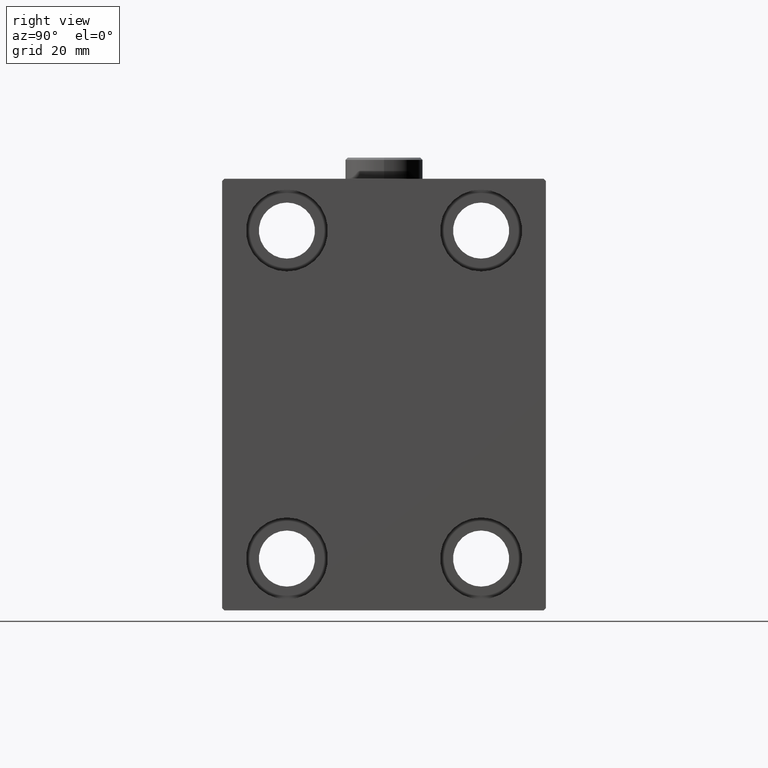
[diagram: clean part render]
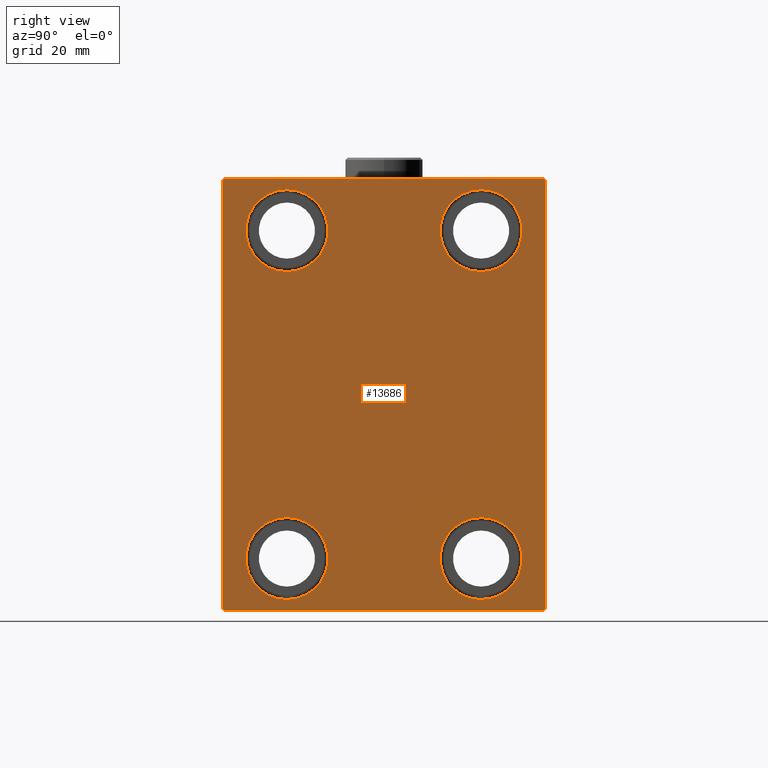
[diagram: same view with one face highlighted and labeled with its STEP entity id]
A machine part, right view. The second image highlights one B-rep face of the part: STEP entity #13686.
In plain terms, the highlighted planar face has unit normal (1, 0, 0).
Its self-contained STEP definition (entity closure, byte-faithful):
#562 = DIRECTION ( 'NONE',  ( -1.000000000000000000, -0.000000000000000000, -0.000000000000000000 ) ) ;
#785 = DIRECTION ( 'NONE',  ( 0.000000000000000000, 0.000000000000000000, 1.000000000000000000 ) ) ;
#888 = EDGE_LOOP ( 'NONE', ( #12313, #14597, #30465, #17201, #4033, #37315, #1785, #41265 ) ) ;
#891 = ORIENTED_EDGE ( 'NONE', *, *, #10269, .T. ) ;
#1553 = LINE ( 'NONE', #32935, #21883 ) ;
#1661 = EDGE_CURVE ( 'NONE', #30885, #25471, #3425, .T. ) ;
#1680 = CARTESIAN_POINT ( 'NONE',  ( 98.00000000000000000, 22.49999999999999645, -37.99999999999999289 ) ) ;
#1705 = DIRECTION ( 'NONE',  ( 0.000000000000000000, 0.000000000000000000, 1.000000000000000000 ) ) ;
#1752 = CARTESIAN_POINT ( 'NONE',  ( 98.00000000000000000, -22.50000000000000711, -28.49999999999998934 ) ) ;
#1785 = ORIENTED_EDGE ( 'NONE', *, *, #32201, .T. ) ;
#1926 = EDGE_CURVE ( 'NONE', #4985, #2727, #10728, .T. ) ;
#2193 = CIRCLE ( 'NONE', #8009, 9.500000000000001776 ) ;
#2316 = EDGE_CURVE ( 'NONE', #5127, #18008, #43561, .T. ) ;
#2421 = EDGE_CURVE ( 'NONE', #43063, #16576, #2986, .T. ) ;
#2727 = VERTEX_POINT ( 'NONE', #24645 ) ;
#2986 = LINE ( 'NONE', #43789, #29823 ) ;
#3299 = FACE_BOUND ( 'NONE', #38117, .T. ) ;
#3425 = CIRCLE ( 'NONE', #21745, 9.500000000000001776 ) ;
#3479 = VERTEX_POINT ( 'NONE', #11196 ) ;
#3983 = CARTESIAN_POINT ( 'NONE',  ( 98.00000000000000000, 22.49999999999999645, -37.99999999999999289 ) ) ;
#4033 = ORIENTED_EDGE ( 'NONE', *, *, #2421, .T. ) ;
#4823 = DIRECTION ( 'NONE',  ( -0.000000000000000000, -0.7071067811865425767, 0.7071067811865525687 ) ) ;
#4985 = VERTEX_POINT ( 'NONE', #28617 ) ;
#5072 = EDGE_CURVE ( 'NONE', #43277, #43063, #42818, .T. ) ;
#5091 = EDGE_CURVE ( 'NONE', #12102, #43277, #8632, .T. ) ;
#5127 = VERTEX_POINT ( 'NONE', #22412 ) ;
#5404 = DIRECTION ( 'NONE',  ( 0.000000000000000000, -1.000000000000000000, -1.850371707708594316E-16 ) ) ;
#5614 = EDGE_CURVE ( 'NONE', #3479, #42567, #43477, .T. ) ;
#5652 = DIRECTION ( 'NONE',  ( 0.000000000000000000, -1.387778780781445676E-16, 1.000000000000000000 ) ) ;
#5947 = VERTEX_POINT ( 'NONE', #18815 ) ;
#6037 = DIRECTION ( 'NONE',  ( -1.000000000000000000, -0.000000000000000000, -0.000000000000000000 ) ) ;
#6092 = LINE ( 'NONE', #37063, #42496 ) ;
#8009 = AXIS2_PLACEMENT_3D ( 'NONE', #23486, #6037, #1705 ) ;
#8129 = VECTOR ( 'NONE', #36424, 1000.000000000000114 ) ;
#8256 = DIRECTION ( 'NONE',  ( -1.000000000000000000, -0.000000000000000000, -0.000000000000000000 ) ) ;
#8444 = AXIS2_PLACEMENT_3D ( 'NONE', #1680, #29639, #12212 ) ;
#8632 = LINE ( 'NONE', #33155, #11961 ) ;
#8699 = AXIS2_PLACEMENT_3D ( 'NONE', #18028, #17798, #14124 ) ;
#8807 = CIRCLE ( 'NONE', #8699, 9.500000000000001776 ) ;
#10269 = EDGE_CURVE ( 'NONE', #2727, #4985, #36279, .T. ) ;
#10728 = CIRCLE ( 'NONE', #24670, 9.500000000000001776 ) ;
#11196 = CARTESIAN_POINT ( 'NONE',  ( 98.00000000000000000, -22.50000000000000711, -47.49999999999999289 ) ) ;
#11289 = EDGE_CURVE ( 'NONE', #41712, #5947, #42180, .T. ) ;
#11942 = CARTESIAN_POINT ( 'NONE',  ( 98.00000000000000000, -37.50000000000000711, 49.49999999999997868 ) ) ;
#11961 = VECTOR ( 'NONE', #15082, 1000.000000000000000 ) ;
#11969 = EDGE_LOOP ( 'NONE', ( #891, #38031 ) ) ;
#12102 = VERTEX_POINT ( 'NONE', #11942 ) ;
#12134 = EDGE_LOOP ( 'NONE', ( #29856, #13609 ) ) ;
#12152 = AXIS2_PLACEMENT_3D ( 'NONE', #35578, #8256, #25494 ) ;
#12212 = DIRECTION ( 'NONE',  ( 0.000000000000000000, 0.000000000000000000, 1.000000000000000000 ) ) ;
#12313 = ORIENTED_EDGE ( 'NONE', *, *, #42219, .T. ) ;
#13400 = DIRECTION ( 'NONE',  ( -1.000000000000000000, -0.000000000000000000, -0.000000000000000000 ) ) ;
#13576 = EDGE_LOOP ( 'NONE', ( #18907, #28610 ) ) ;
#13598 = CARTESIAN_POINT ( 'NONE',  ( 98.00000000000000000, 36.99999999999999289, 50.00000000000000711 ) ) ;
#13609 = ORIENTED_EDGE ( 'NONE', *, *, #1661, .T. ) ;
#13686 = ADVANCED_FACE ( 'NONE', ( #24167, #13841, #3299, #34692, #27829 ), #20049, .T. ) ;
#13841 = FACE_BOUND ( 'NONE', #12134, .T. ) ;
#14124 = DIRECTION ( 'NONE',  ( 0.000000000000000000, 0.000000000000000000, 1.000000000000000000 ) ) ;
#14597 = ORIENTED_EDGE ( 'NONE', *, *, #22693, .T. ) ;
#15082 = DIRECTION ( 'NONE',  ( 0.000000000000000000, 0.000000000000000000, -1.000000000000000000 ) ) ;
#15524 = DIRECTION ( 'NONE',  ( 0.000000000000000000, -0.7071067811865474617, -0.7071067811865474617 ) ) ;
#15552 = CARTESIAN_POINT ( 'NONE',  ( 98.00000000000000000, -36.99999999999999289, 49.99999999999999289 ) ) ;
#16439 = ORIENTED_EDGE ( 'NONE', *, *, #37194, .T. ) ;
#16576 = VERTEX_POINT ( 'NONE', #40091 ) ;
#16658 = CARTESIAN_POINT ( 'NONE',  ( 98.00000000000000000, -22.49999999999999645, 37.99999999999999289 ) ) ;
#17201 = ORIENTED_EDGE ( 'NONE', *, *, #5072, .T. ) ;
#17798 = DIRECTION ( 'NONE',  ( -1.000000000000000000, -0.000000000000000000, -0.000000000000000000 ) ) ;
#18008 = VERTEX_POINT ( 'NONE', #13598 ) ;
#18028 = CARTESIAN_POINT ( 'NONE',  ( 98.00000000000000000, -22.50000000000000711, -37.99999999999999289 ) ) ;
#18815 = CARTESIAN_POINT ( 'NONE',  ( 98.00000000000000000, 22.50000000000000355, 47.49999999999999289 ) ) ;
#18907 = ORIENTED_EDGE ( 'NONE', *, *, #5614, .T. ) ;
#20049 = PLANE ( 'NONE',  #27488 ) ;
#20578 = DIRECTION ( 'NONE',  ( 0.000000000000000000, 0.000000000000000000, 1.000000000000000000 ) ) ;
#21058 = CARTESIAN_POINT ( 'NONE',  ( 98.00000000000000000, -22.49999999999999645, 47.49999999999999289 ) ) ;
#21745 = AXIS2_PLACEMENT_3D ( 'NONE', #16658, #24212, #24660 ) ;
#21883 = VECTOR ( 'NONE', #15524, 1000.000000000000114 ) ;
#22412 = CARTESIAN_POINT ( 'NONE',  ( 98.00000000000000000, 37.49999999999999289, 49.50000000000000000 ) ) ;
#22693 = EDGE_CURVE ( 'NONE', #41879, #12102, #1553, .T. ) ;
#22839 = LINE ( 'NONE', #40475, #24531 ) ;
#23319 = CARTESIAN_POINT ( 'NONE',  ( 98.00000000000000000, 37.50000000000000711, -49.50000000000000000 ) ) ;
#23486 = CARTESIAN_POINT ( 'NONE',  ( 98.00000000000000000, -22.49999999999999645, 37.99999999999999289 ) ) ;
#23708 = DIRECTION ( 'NONE',  ( 1.000000000000000000, 0.000000000000000000, 0.000000000000000000 ) ) ;
#24167 = FACE_BOUND ( 'NONE', #11969, .T. ) ;
#24212 = DIRECTION ( 'NONE',  ( -1.000000000000000000, -0.000000000000000000, -0.000000000000000000 ) ) ;
#24531 = VECTOR ( 'NONE', #5404, 1000.000000000000000 ) ;
#24645 = CARTESIAN_POINT ( 'NONE',  ( 98.00000000000000000, 22.49999999999999645, -47.49999999999999289 ) ) ;
#24660 = DIRECTION ( 'NONE',  ( 0.000000000000000000, 0.000000000000000000, 1.000000000000000000 ) ) ;
#24670 = AXIS2_PLACEMENT_3D ( 'NONE', #3983, #562, #785 ) ;
#25131 = EDGE_CURVE ( 'NONE', #25471, #30885, #2193, .T. ) ;
#25471 = VERTEX_POINT ( 'NONE', #30971 ) ;
#25494 = DIRECTION ( 'NONE',  ( 0.000000000000000000, 0.000000000000000000, 1.000000000000000000 ) ) ;
#26075 = DIRECTION ( 'NONE',  ( -0.000000000000000000, 0.7071067811865474617, -0.7071067811865474617 ) ) ;
#26783 = ORIENTED_EDGE ( 'NONE', *, *, #11289, .T. ) ;
#27388 = DIRECTION ( 'NONE',  ( 0.000000000000000000, 0.000000000000000000, 1.000000000000000000 ) ) ;
#27488 = AXIS2_PLACEMENT_3D ( 'NONE', #38152, #23708, #34008 ) ;
#27619 = VERTEX_POINT ( 'NONE', #23319 ) ;
#27829 = FACE_OUTER_BOUND ( 'NONE', #888, .T. ) ;
#28610 = ORIENTED_EDGE ( 'NONE', *, *, #28700, .T. ) ;
#28617 = CARTESIAN_POINT ( 'NONE',  ( 98.00000000000000000, 22.49999999999999645, -28.49999999999998934 ) ) ;
#28700 = EDGE_CURVE ( 'NONE', #42567, #3479, #8807, .T. ) ;
#29639 = DIRECTION ( 'NONE',  ( -1.000000000000000000, -0.000000000000000000, -0.000000000000000000 ) ) ;
#29823 = VECTOR ( 'NONE', #30723, 1000.000000000000000 ) ;
#29856 = ORIENTED_EDGE ( 'NONE', *, *, #25131, .T. ) ;
#30465 = ORIENTED_EDGE ( 'NONE', *, *, #5091, .T. ) ;
#30723 = DIRECTION ( 'NONE',  ( 0.000000000000000000, 1.000000000000000000, 9.251858538542970348E-17 ) ) ;
#30885 = VERTEX_POINT ( 'NONE', #21058 ) ;
#30971 = CARTESIAN_POINT ( 'NONE',  ( 98.00000000000000000, -22.49999999999999645, 28.49999999999998934 ) ) ;
#31056 = AXIS2_PLACEMENT_3D ( 'NONE', #31940, #13400, #27388 ) ;
#31940 = CARTESIAN_POINT ( 'NONE',  ( 98.00000000000000000, -22.50000000000000711, -37.99999999999999289 ) ) ;
#31975 = VECTOR ( 'NONE', #4823, 999.9999999999998863 ) ;
#32201 = EDGE_CURVE ( 'NONE', #27619, #5127, #6092, .T. ) ;
#32935 = CARTESIAN_POINT ( 'NONE',  ( 98.00000000000000000, -43.49999999999998579, 43.49999999999998579 ) ) ;
#33155 = CARTESIAN_POINT ( 'NONE',  ( 98.00000000000000000, -37.50000000000000711, 49.99999999999999289 ) ) ;
#34008 = DIRECTION ( 'NONE',  ( 0.000000000000000000, 0.000000000000000000, -1.000000000000000000 ) ) ;
#34539 = CARTESIAN_POINT ( 'NONE',  ( 98.00000000000000000, 22.50000000000000355, 37.99999999999999289 ) ) ;
#34541 = EDGE_CURVE ( 'NONE', #16576, #27619, #36650, .T. ) ;
#34630 = AXIS2_PLACEMENT_3D ( 'NONE', #34539, #44411, #20578 ) ;
#34685 = VECTOR ( 'NONE', #26075, 1000.000000000000114 ) ;
#34692 = FACE_BOUND ( 'NONE', #13576, .T. ) ;
#35578 = CARTESIAN_POINT ( 'NONE',  ( 98.00000000000000000, 22.50000000000000355, 37.99999999999999289 ) ) ;
#36227 = CARTESIAN_POINT ( 'NONE',  ( 98.00000000000000000, 43.50000000000026290, 43.49999999999965894 ) ) ;
#36279 = CIRCLE ( 'NONE', #8444, 9.500000000000001776 ) ;
#36424 = DIRECTION ( 'NONE',  ( -0.000000000000000000, 0.7071067811865474617, 0.7071067811865474617 ) ) ;
#36650 = LINE ( 'NONE', #36880, #8129 ) ;
#36716 = CARTESIAN_POINT ( 'NONE',  ( 98.00000000000000000, -37.50000000000000711, -49.49999999999999289 ) ) ;
#36880 = CARTESIAN_POINT ( 'NONE',  ( 98.00000000000000000, 43.50000000000000711, -43.50000000000000711 ) ) ;
#37063 = CARTESIAN_POINT ( 'NONE',  ( 98.00000000000000000, 37.50000000000000711, -50.00000000000000000 ) ) ;
#37194 = EDGE_CURVE ( 'NONE', #5947, #41712, #40480, .T. ) ;
#37315 = ORIENTED_EDGE ( 'NONE', *, *, #34541, .T. ) ;
#38031 = ORIENTED_EDGE ( 'NONE', *, *, #1926, .T. ) ;
#38117 = EDGE_LOOP ( 'NONE', ( #26783, #16439 ) ) ;
#38152 = CARTESIAN_POINT ( 'NONE',  ( 98.00000000000000000, 0.000000000000000000, 0.000000000000000000 ) ) ;
#40091 = CARTESIAN_POINT ( 'NONE',  ( 98.00000000000000000, 37.00000000000000711, -50.00000000000000000 ) ) ;
#40475 = CARTESIAN_POINT ( 'NONE',  ( 98.00000000000000000, 37.49999999999999289, 50.00000000000000711 ) ) ;
#40480 = CIRCLE ( 'NONE', #34630, 9.500000000000001776 ) ;
#41051 = CARTESIAN_POINT ( 'NONE',  ( 98.00000000000000000, 22.50000000000000355, 28.49999999999998934 ) ) ;
#41265 = ORIENTED_EDGE ( 'NONE', *, *, #2316, .T. ) ;
#41712 = VERTEX_POINT ( 'NONE', #41051 ) ;
#41879 = VERTEX_POINT ( 'NONE', #15552 ) ;
#42180 = CIRCLE ( 'NONE', #12152, 9.500000000000001776 ) ;
#42219 = EDGE_CURVE ( 'NONE', #18008, #41879, #22839, .T. ) ;
#42496 = VECTOR ( 'NONE', #5652, 1000.000000000000000 ) ;
#42567 = VERTEX_POINT ( 'NONE', #1752 ) ;
#42818 = LINE ( 'NONE', #43042, #34685 ) ;
#43042 = CARTESIAN_POINT ( 'NONE',  ( 98.00000000000000000, -43.50000000000000000, -43.50000000000000000 ) ) ;
#43063 = VERTEX_POINT ( 'NONE', #44337 ) ;
#43277 = VERTEX_POINT ( 'NONE', #36716 ) ;
#43477 = CIRCLE ( 'NONE', #31056, 9.500000000000001776 ) ;
#43561 = LINE ( 'NONE', #36227, #31975 ) ;
#43789 = CARTESIAN_POINT ( 'NONE',  ( 98.00000000000000000, -37.50000000000000711, -50.00000000000000711 ) ) ;
#44337 = CARTESIAN_POINT ( 'NONE',  ( 98.00000000000000000, -36.99999999999999289, -50.00000000000000711 ) ) ;
#44411 = DIRECTION ( 'NONE',  ( -1.000000000000000000, -0.000000000000000000, -0.000000000000000000 ) ) ;